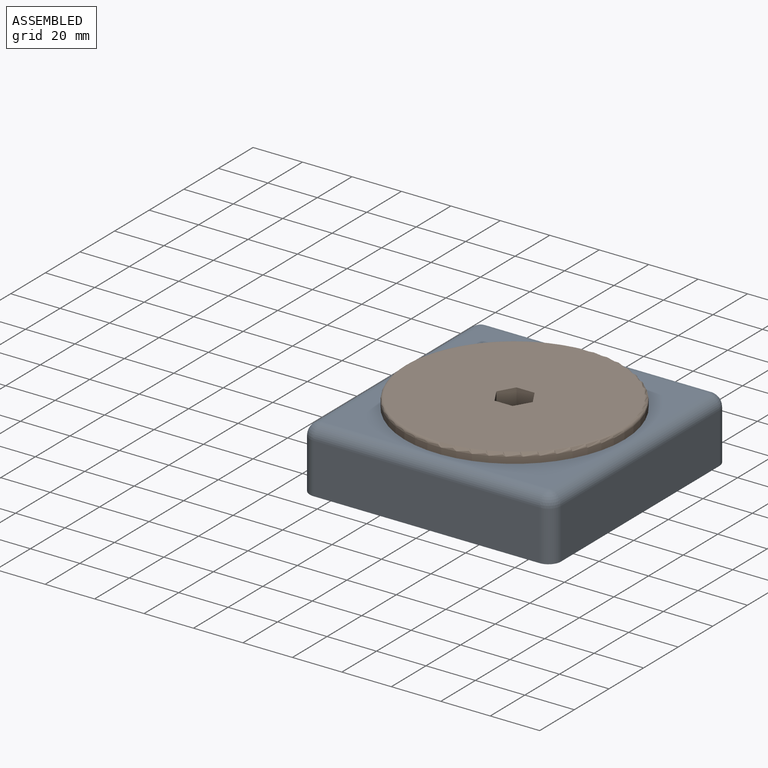
[diagram: assembled view]
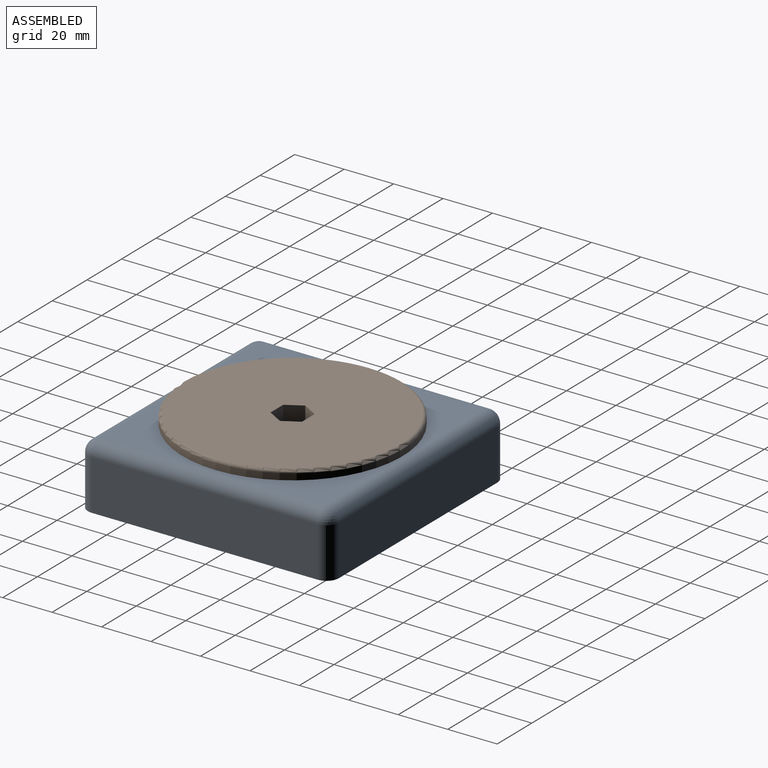
[diagram: assembled view, second angle]
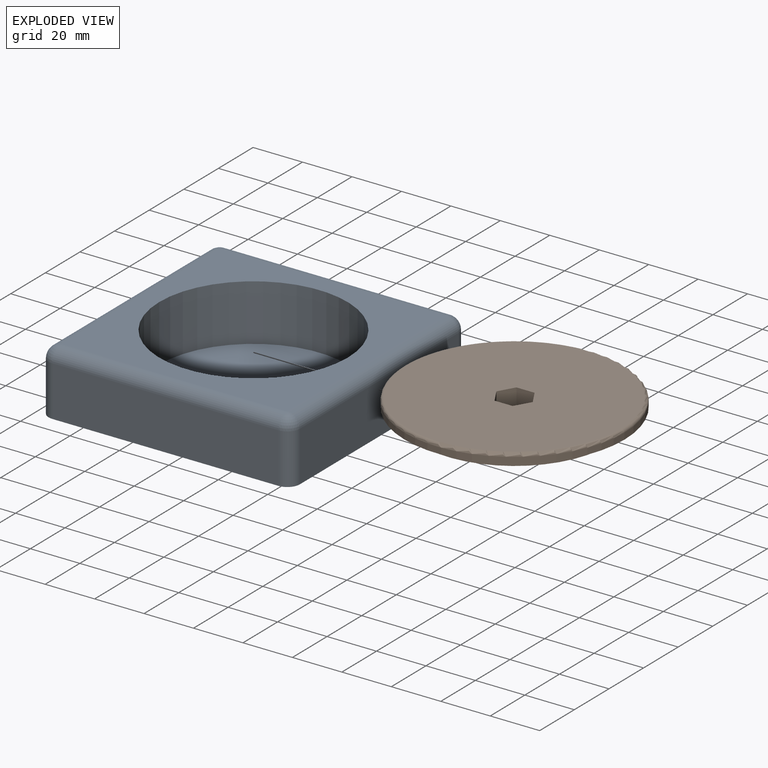
[diagram: exploded view]
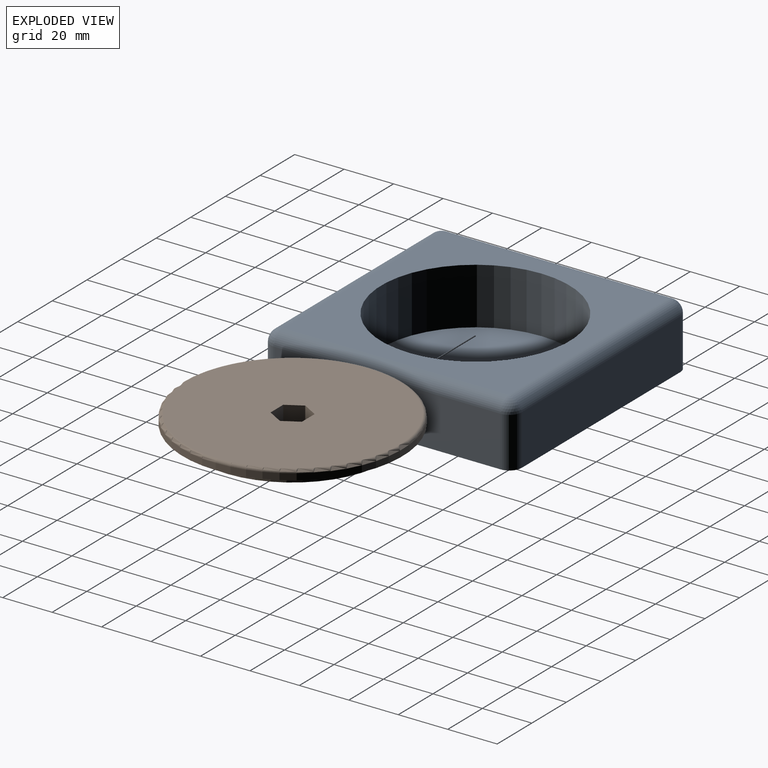
[diagram: exploded view, second angle]
ASSEMBLY  parts=2 mates=2
PART A: 26 faces, bbox 101.6x101.6x25.4 mm
  f0: plane 101.6x101.6mm, normal (0,0,-1), area 10160.7mm2, adj f2,f3,f4,f5,f8,f10,f13,f19
  f1: plane 76.2x76.2mm, normal (0,0,1), area 4420.7mm2, adj f7,f20,f21,f22,f23,f24,f25
  f2: plane 91.44x20.32mm, normal (0,-1,0), area 1858.1mm2, adj f0,f10,f16,f19
  f3: plane 91.44x20.32mm, normal (1,0,0), area 1858.1mm2, adj f0,f13,f17,f19
  f4: plane 91.44x20.32mm, normal (0,1,0), area 1858.1mm2, adj f0,f8,f12,f13
  f5: plane 91.44x20.32mm, normal (-1,0,0), area 1858.1mm2, adj f0,f8,f10,f11
  f6: plane 91.44x91.44mm, normal (0,0,1), area 3800.9mm2, adj f7,f11,f12,f16,f17
  f7: cylinder r=38.1mm len=76.2mm, axis (0,0,1), area 5472.4mm2, adj f1,f6
  f8: cylinder r=5.08mm len=20.32mm, axis (0,0,-1), area 162.1mm2, adj f0,f4,f5,f9
  f9: sphere r=5.08mm, area 40.5mm2, adj f8,f11,f12
  f10: cylinder r=5.08mm len=20.32mm, axis (0,0,1), area 162.1mm2, adj f0,f2,f5,f14
  f11: cylinder r=5.08mm len=91.44mm, axis (0,1,0), area 729.7mm2, adj f5,f6,f9,f14
  f12: cylinder r=5.08mm len=91.44mm, axis (1,0,0), area 729.7mm2, adj f4,f6,f9,f15
  f13: cylinder r=5.08mm len=20.32mm, axis (0,0,1), area 162.1mm2, adj f0,f3,f4,f15
  f14: sphere r=5.08mm, area 40.5mm2, adj f10,f11,f16
  f15: sphere r=5.08mm, area 40.5mm2, adj f12,f13,f17
  f16: cylinder r=5.08mm len=91.44mm, axis (-1,0,0), area 729.7mm2, adj f2,f6,f14,f18
  f17: cylinder r=5.08mm len=91.44mm, axis (0,-1,0), area 729.7mm2, adj f3,f6,f15,f18
  f18: sphere r=5.08mm, area 40.5mm2, adj f16,f17,f19
  f19: cylinder r=5.08mm len=20.32mm, axis (0,0,-1), area 162.1mm2, adj f0,f2,f3,f18
  f20: plane 6.35x3.67mm, normal (0.87,-0.5,0), area 18.6mm2, adj f0,f1,f21,f25
  f21: plane 6.35x3.67mm, normal (0.87,0.5,0), area 18.6mm2, adj f0,f1,f20,f22
  f22: plane 7.33x2.54mm, normal (0,1,0), area 18.6mm2, adj f0,f1,f21,f23
  f23: plane 6.35x3.67mm, normal (-0.87,0.5,0), area 18.6mm2, adj f0,f1,f22,f24
  f24: plane 6.35x3.67mm, normal (-0.87,-0.5,0), area 18.6mm2, adj f0,f1,f23,f25
  f25: plane 7.33x2.54mm, normal (0,-1,0), area 18.6mm2, adj f0,f1,f20,f24
PART B: 12 faces, bbox 96.2x96.2x7.6 mm
  f0: plane 75.95x75.95mm, normal (0,0,-1), area 4390.3mm2, adj f2,f6,f7,f8,f9,f10,f11
  f1: plane 86.36x86.36mm, normal (0,0,1), area 5717.9mm2, adj f5,f6,f7,f8,f9,f10,f11
  f2: cylinder r=37.97mm len=75.95mm, axis (0,0,1), area 909mm2, adj f0,f4
  f3: cylinder r=44.45mm len=88.9mm, axis (0,0,-1), area 709.4mm2, adj f4,f5
  f4: plane 88.9x88.9mm, normal (0,0,-1), area 1677.2mm2, adj f2,f3
  f5: torus R=43.18mm, axis (0,0,1), area 551.4mm2, adj f1,f3
  f6: plane 7.62x6.35mm, normal (0.87,-0.5,0), area 55.9mm2, adj f0,f1,f7,f11
  f7: plane 7.62x6.35mm, normal (0.87,0.5,0), area 55.9mm2, adj f0,f1,f6,f8
  f8: plane 7.62x7.33mm, normal (0,1,0), area 55.9mm2, adj f0,f1,f7,f9
  f9: plane 7.62x6.35mm, normal (-0.87,0.5,0), area 55.9mm2, adj f0,f1,f8,f10
  f10: plane 7.62x6.35mm, normal (-0.87,-0.5,0), area 55.9mm2, adj f0,f1,f9,f11
  f11: plane 7.62x7.33mm, normal (0,-1,0), area 55.9mm2, adj f0,f1,f6,f10
PLACE A t=(-18.29,-5.57,10.64)mm
PLACE B t=(-18.29,-5.57,10.64)mm
MATE planar B.f2 <-> A.f7  axis (0,0,-1) through (-18.29,-5.57,36.04)mm
MATE cylindrical B.f2 <-> A.f7  axis (0,0,1) through (-18.29,-5.57,38.58)mm
